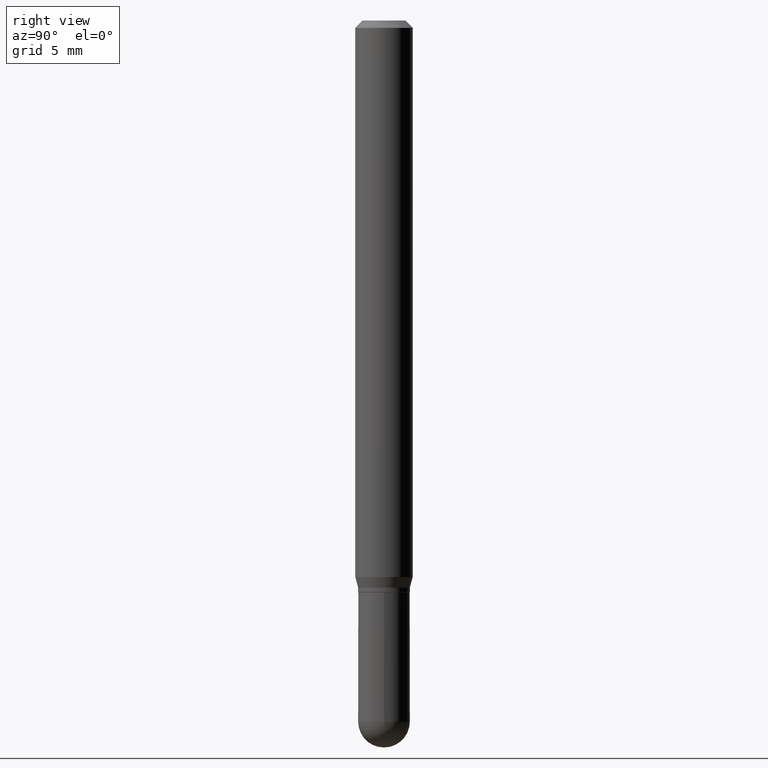
[diagram: clean part render]
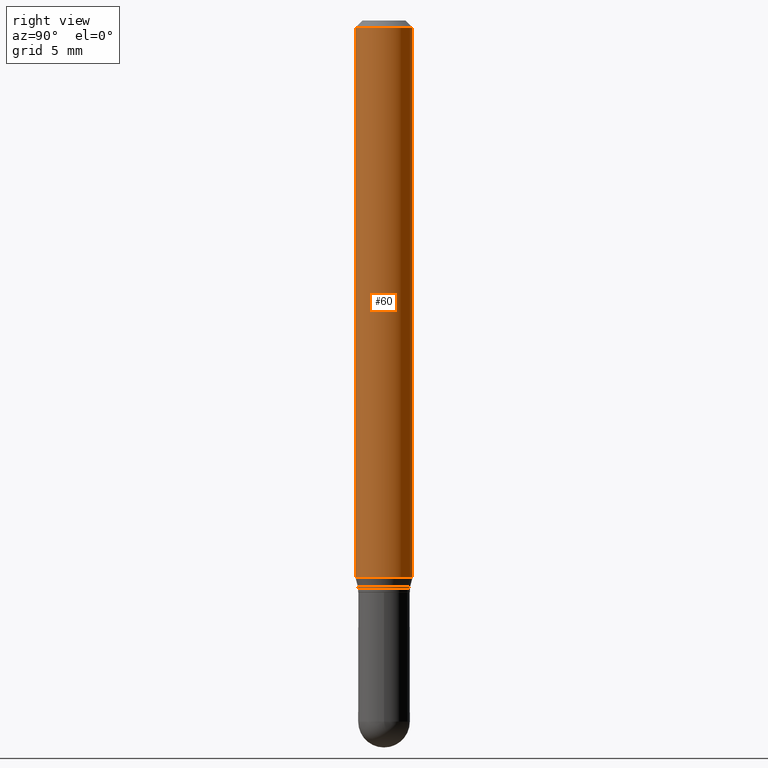
[diagram: same view with one face highlighted and labeled with its STEP entity id]
A machine part, right view. The second image highlights one B-rep face of the part: STEP entity #60.
In plain terms, the highlighted cylindrical surface (edge-blend (fillet) strip) has radius 1.4999 mm, axis along (-0, 0, 1).
Its self-contained STEP definition (entity closure, byte-faithful):
#19 = CARTESIAN_POINT ( 'NONE',  ( 3.668294337304873001E-31, -5.237091507743192669E-17, -0.01500000000000009139 ) ) ;
#20 = VECTOR ( 'NONE', #226, 39.37007874015748143 ) ;
#24 = EDGE_CURVE ( 'NONE', #115, #266, #98, .T. ) ;
#36 = CYLINDRICAL_SURFACE ( 'NONE', #103, 0.05904999999999999832 ) ;
#48 = CARTESIAN_POINT ( 'NONE',  ( 4.195754854663672510E-16, 0.05904999999999994281, -0.01500000000000029955 ) ) ;
#60 = ADVANCED_FACE ( 'NONE', ( #396 ), #36, .T. ) ;
#62 = ORIENTED_EDGE ( 'NONE', *, *, #139, .F. ) ;
#64 = AXIS2_PLACEMENT_3D ( 'NONE', #19, #88, #373 ) ;
#69 = CARTESIAN_POINT ( 'NONE',  ( -4.123439461173460774E-16, -0.05905000000000400207, -1.145180900235343913 ) ) ;
#81 = ORIENTED_EDGE ( 'NONE', *, *, #24, .T. ) ;
#88 = DIRECTION ( 'NONE',  ( -2.445529558203233755E-29, 3.491394338495440431E-15, 1.000000000000000000 ) ) ;
#97 = EDGE_CURVE ( 'NONE', #266, #203, #117, .T. ) ;
#98 = CIRCLE ( 'NONE', #298, 0.05904999999999999832 ) ;
#103 = AXIS2_PLACEMENT_3D ( 'NONE', #183, #261, #345 ) ;
#115 = VERTEX_POINT ( 'NONE', #69 ) ;
#117 = LINE ( 'NONE', #470, #20 ) ;
#139 = EDGE_CURVE ( 'NONE', #115, #503, #385, .T. ) ;
#141 = DIRECTION ( 'NONE',  ( -6.982962677686265922E-15, -1.000000000000000000, 4.626330217890369336E-15 ) ) ;
#183 = CARTESIAN_POINT ( 'NONE',  ( 0.000000000000000000, 0.000000000000000000, 0.000000000000000000 ) ) ;
#188 = VECTOR ( 'NONE', #438, 39.37007874015748143 ) ;
#203 = VERTEX_POINT ( 'NONE', #48 ) ;
#219 = ORIENTED_EDGE ( 'NONE', *, *, #97, .T. ) ;
#226 = DIRECTION ( 'NONE',  ( -2.445529558203233755E-29, 3.491394338495440431E-15, 1.000000000000000000 ) ) ;
#237 = EDGE_LOOP ( 'NONE', ( #81, #219, #389, #62 ) ) ;
#261 = DIRECTION ( 'NONE',  ( -2.445529558203233755E-29, 3.491394338495440431E-15, 1.000000000000000000 ) ) ;
#265 = CARTESIAN_POINT ( 'NONE',  ( -4.123439461173736383E-16, -0.05905000000000005383, -0.01499999999999988495 ) ) ;
#266 = VERTEX_POINT ( 'NONE', #284 ) ;
#267 = CARTESIAN_POINT ( 'NONE',  ( 2.800573741015322024E-29, -3.998278111634791463E-15, -1.145180900235343913 ) ) ;
#274 = CARTESIAN_POINT ( 'NONE',  ( -4.123439461173739834E-16, -0.05904999999999999832, 2.061668356881557438E-16 ) ) ;
#284 = CARTESIAN_POINT ( 'NONE',  ( 4.195754854663670538E-16, 0.05904999999999599458, -1.145180900235344135 ) ) ;
#298 = AXIS2_PLACEMENT_3D ( 'NONE', #267, #430, #141 ) ;
#345 = DIRECTION ( 'NONE',  ( -6.982962677686265922E-15, -1.000000000000000000, 3.491394338495440431E-15 ) ) ;
#373 = DIRECTION ( 'NONE',  ( -6.982962677686265922E-15, -1.000000000000000000, 3.505890868245046092E-15 ) ) ;
#385 = LINE ( 'NONE', #274, #188 ) ;
#389 = ORIENTED_EDGE ( 'NONE', *, *, #413, .F. ) ;
#396 = FACE_OUTER_BOUND ( 'NONE', #237, .T. ) ;
#404 = CIRCLE ( 'NONE', #64, 0.05904999999999999832 ) ;
#413 = EDGE_CURVE ( 'NONE', #503, #203, #404, .T. ) ;
#430 = DIRECTION ( 'NONE',  ( -2.445529558203233755E-29, 3.491394338495440431E-15, 1.000000000000000000 ) ) ;
#438 = DIRECTION ( 'NONE',  ( -2.445529558203233755E-29, 3.491394338495440431E-15, 1.000000000000000000 ) ) ;
#470 = CARTESIAN_POINT ( 'NONE',  ( 4.195754854663390985E-16, 0.05904999999999999832, -2.061668356881557438E-16 ) ) ;
#503 = VERTEX_POINT ( 'NONE', #265 ) ;